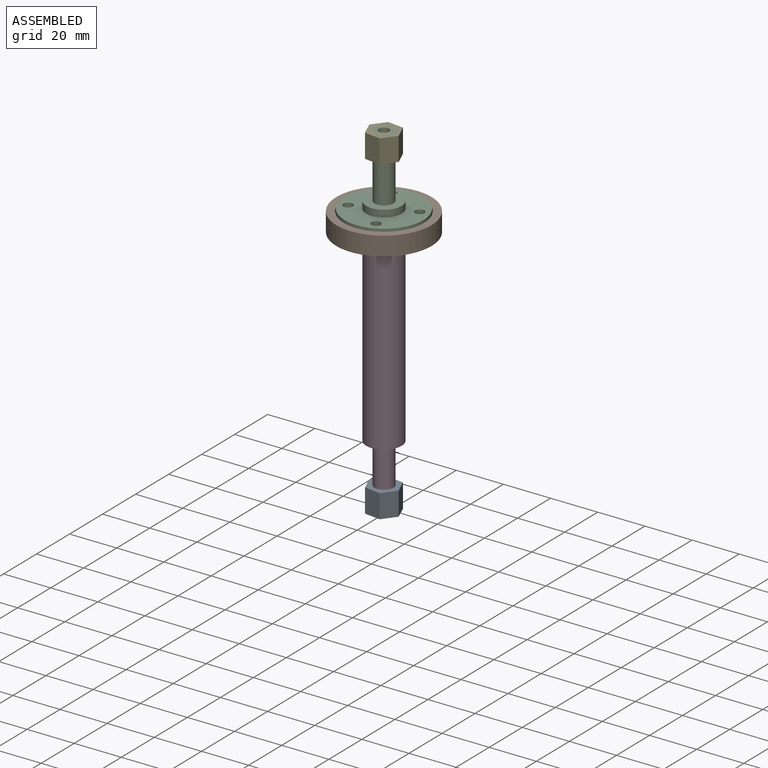
[diagram: assembled view]
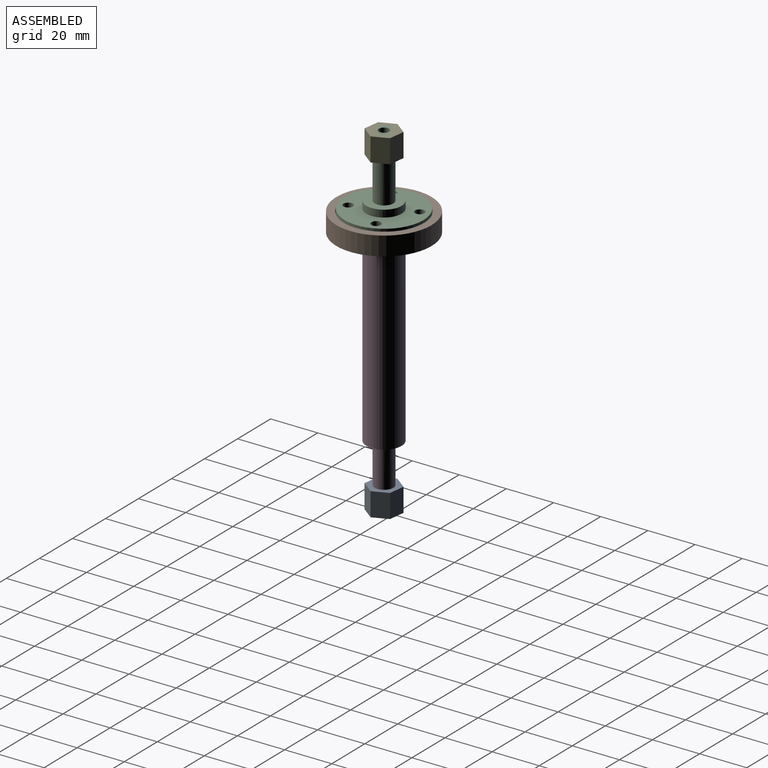
[diagram: assembled view, second angle]
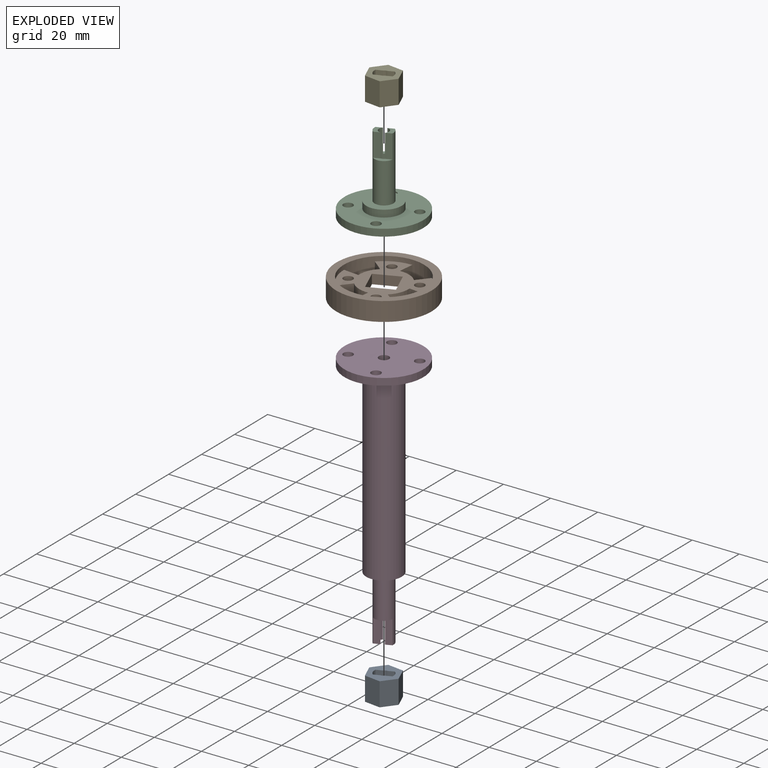
[diagram: exploded view]
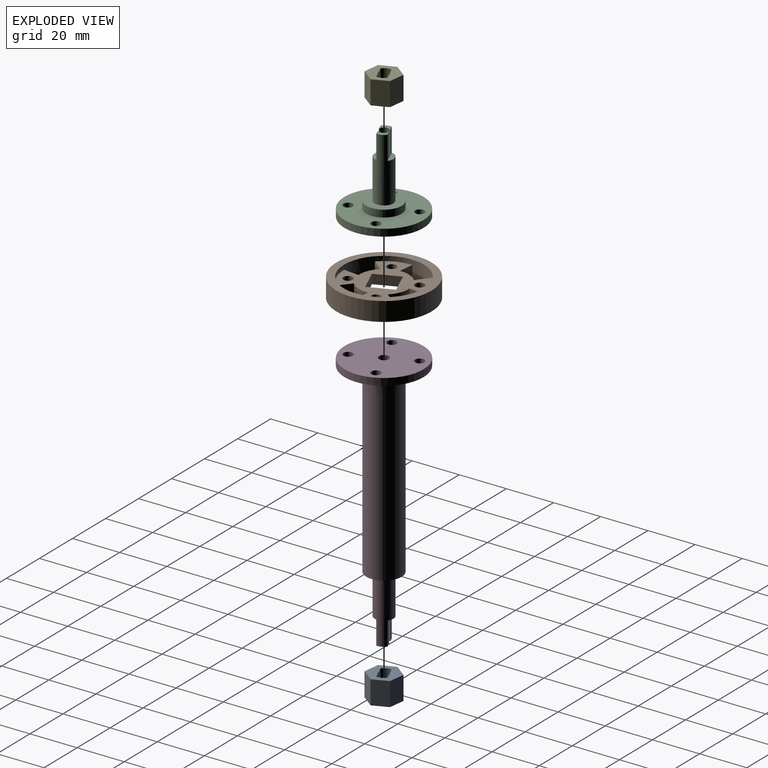
[diagram: exploded view, second angle]
ASSEMBLY  parts=5 mates=10
PART A: 16 faces, bbox 12x13.9x10 mm
  f0: plane 13.86x12mm, normal (0,0,1), area 93.8mm2, adj f2,f3,f4,f5,f6,f7,f8,f9
  f1: plane 13.86x12mm, normal (0,0,-1), area 93.8mm2, adj f2,f3,f4,f5,f6,f7,f8,f9
  f2: cylinder r=2.15mm len=10mm, axis (0,0,1), area 16.2mm2, adj f0,f1,f10,f13
  f3: plane 10x6.93mm, normal (1,0,0), area 69.3mm2, adj f0,f1,f4,f8
  f4: plane 10x6mm, normal (0.5,0.87,0), area 69.3mm2, adj f0,f1,f3,f5
  f5: plane 10x6mm, normal (-0.5,0.87,0), area 69.3mm2, adj f0,f1,f4,f6
  f6: plane 10x6.93mm, normal (-1,0,0), area 69.3mm2, adj f0,f1,f5,f7
  f7: plane 10x6mm, normal (-0.5,-0.87,0), area 69.3mm2, adj f0,f1,f6,f8
  f8: plane 10x6mm, normal (0.5,-0.87,0), area 69.3mm2, adj f0,f1,f3,f7
  f9: cylinder r=2.15mm len=10mm, axis (0,0,1), area 16.2mm2, adj f0,f1,f11,f15
  f10: plane 10x2.68mm, normal (0,-1,0), area 26.8mm2, adj f0,f1,f2,f12
  f11: plane 10x2.68mm, normal (0,1,0), area 26.8mm2, adj f0,f1,f9,f12
  f12: cylinder r=4mm len=10mm, axis (0,0,1), area 41.9mm2, adj f0,f1,f10,f11
  f13: plane 10x2.68mm, normal (0,-1,0), area 26.8mm2, adj f0,f1,f2,f14
  f14: cylinder r=4mm len=10mm, axis (0,0,1), area 41.9mm2, adj f0,f1,f13,f15
  f15: plane 10x2.68mm, normal (0,1,0), area 26.8mm2, adj f0,f1,f9,f14
PART B: 26 faces, bbox 40.4x40.4x8 mm
  f0: plane 34x34mm, normal (0,0,1), area 446.6mm2, adj f5,f6,f7,f8,f9,f10,f11,f12
  f1: plane 34x34mm, normal (0,0,-1), area 446.6mm2, adj f5,f6,f7,f8,f9,f10,f11,f12
  f2: cylinder r=20.2mm len=40.4mm, axis (0,0,-1), area 1015.4mm2, adj f3,f4
  f3: plane 40.4x40.4mm, normal (0,0,1), area 374mm2, adj f2,f5
  f4: plane 40.4x40.4mm, normal (0,0,-1), area 374mm2, adj f2,f5
  f5: cylinder r=17mm len=34mm, axis (0,0,1), area 635.5mm2, adj f0,f1,f3,f4,f14,f16,f17,f18
  f6: plane 11x4mm, normal (0,-1,0), area 44mm2, adj f0,f1,f7,f9
  f7: plane 11x4mm, normal (1,0,0), area 44mm2, adj f0,f1,f6,f8
  f8: plane 11x4mm, normal (0,1,0), area 44mm2, adj f0,f1,f7,f9
  f9: plane 11x4mm, normal (-1,0,0), area 44mm2, adj f0,f1,f6,f8
  f10: cylinder r=2mm len=4mm, axis (0,0,1), area 50.3mm2, adj f0,f1
  f11: cylinder r=2mm len=4mm, axis (0,0,1), area 50.3mm2, adj f0,f1
  f12: cylinder r=2mm len=4mm, axis (0,0,1), area 50.3mm2, adj f0,f1
  f13: cylinder r=2mm len=4mm, axis (0,0,1), area 50.3mm2, adj f0,f1
  f14: plane 5.76x4mm, normal (0.48,0.88,0), area 26.2mm2, adj f0,f1,f5,f15
  f15: cylinder r=10.5mm len=6.38mm, axis (0,0,1), area 37.2mm2, adj f0,f1,f14,f16
  f16: plane 5.74x4mm, normal (-0.88,-0.48,0), area 26.2mm2, adj f0,f1,f5,f15
  f17: plane 5.74x4mm, normal (-0.48,0.88,0), area 26.2mm2, adj f0,f1,f5,f19
  f18: plane 5.76x4mm, normal (0.88,-0.48,0), area 26.2mm2, adj f0,f1,f5,f19
  f19: cylinder r=10.5mm len=6.38mm, axis (0,0,1), area 37.2mm2, adj f0,f1,f17,f18
  f20: plane 5.74x4mm, normal (0.88,0.48,0), area 26.2mm2, adj f0,f1,f5,f22
  f21: plane 5.76x4mm, normal (-0.48,-0.88,0), area 26.2mm2, adj f0,f1,f5,f22
  f22: cylinder r=10.5mm len=6.38mm, axis (0,0,1), area 37.2mm2, adj f0,f1,f20,f21
  f23: plane 5.74x4mm, normal (0.48,-0.88,0), area 26.2mm2, adj f0,f1,f5,f25
  f24: plane 5.76x4mm, normal (-0.88,0.48,0), area 26.2mm2, adj f0,f1,f5,f25
  f25: cylinder r=10.5mm len=6.38mm, axis (0,0,1), area 37.2mm2, adj f0,f1,f23,f24
PART C: 19 faces, bbox 33.5x33.5x33 mm
  f0: plane 4x3.21mm, normal (0,0,1), area 8.2mm2, adj f11,f12,f13,f16
  f1: plane 4x3.21mm, normal (0,0,1), area 8.2mm2, adj f11,f12,f14,f17
  f2: cylinder r=16.75mm len=33.5mm, axis (0,0,-1), area 315.7mm2, adj f3,f4
  f3: plane 33.5x33.5mm, normal (0,0,1), area 654.4mm2, adj f2,f5,f6,f7,f8,f9
  f4: plane 33.5x33.5mm, normal (0,0,-1), area 816.6mm2, adj f2,f5,f6,f7,f8,f12
  f5: cylinder r=2mm len=4mm, axis (0,0,1), area 37.7mm2, adj f3,f4
  f6: cylinder r=2mm len=4mm, axis (0,0,1), area 37.7mm2, adj f3,f4
  f7: cylinder r=2mm len=4mm, axis (0,0,1), area 37.7mm2, adj f3,f4
  f8: cylinder r=2mm len=4mm, axis (0,0,1), area 37.7mm2, adj f3,f4
  f9: cylinder r=7.5mm len=15mm, axis (0,0,-1), area 141.4mm2, adj f3,f10
  f10: plane 15x15mm, normal (0,0,1), area 126.4mm2, adj f9,f11
  f11: cylinder r=4mm len=27mm, axis (0,0,-1), area 511mm2, adj f0,f1,f10,f13,f14,f15,f16,f17
  f12: cylinder r=2.15mm len=33mm, axis (0,0,1), area 413.5mm2, adj f0,f1,f4,f13,f14,f15,f16,f17
  f13: plane 10x2.68mm, normal (0,-1,0), area 26.8mm2, adj f0,f11,f12,f15
  f14: plane 10x2.68mm, normal (0,-1,0), area 26.8mm2, adj f1,f11,f12,f15
  f15: plane 6.93x2mm, normal (0,0,1), area 9.7mm2, adj f11,f12,f13,f14
  f16: plane 10x2.68mm, normal (0,1,0), area 26.8mm2, adj f0,f11,f12,f18
  f17: plane 10x2.68mm, normal (0,1,0), area 26.8mm2, adj f1,f11,f12,f18
  f18: plane 6.93x2mm, normal (0,0,1), area 9.7mm2, adj f11,f12,f16,f17
PART D: 19 faces, bbox 33.5x33.5x109 mm
  f0: plane 4x3.21mm, normal (0,0,1), area 8.2mm2, adj f10,f12,f14,f16
  f1: cylinder r=16.75mm len=33.5mm, axis (0,0,-1), area 315.7mm2, adj f2,f3
  f2: plane 33.5x33.5mm, normal (0,0,1), area 654.4mm2, adj f1,f4,f5,f6,f7,f8
  f3: plane 33.5x33.5mm, normal (0,0,-1), area 816.6mm2, adj f1,f4,f5,f6,f7,f12
  f4: cylinder r=2mm len=4mm, axis (0,0,1), area 37.7mm2, adj f2,f3
  f5: cylinder r=2mm len=4mm, axis (0,0,1), area 37.7mm2, adj f2,f3
  f6: cylinder r=2mm len=4mm, axis (0,0,1), area 37.7mm2, adj f2,f3
  f7: cylinder r=2mm len=4mm, axis (0,0,1), area 37.7mm2, adj f2,f3
  f8: cylinder r=7.5mm len=79mm, axis (0,0,-1), area 3722.8mm2, adj f2,f9
  f9: plane 15x15mm, normal (0,0,1), area 126.4mm2, adj f8,f10
  f10: cylinder r=4mm len=27mm, axis (0,0,-1), area 511mm2, adj f0,f9,f11,f13,f14,f15,f16,f17
  f11: plane 4x3.21mm, normal (0,0,1), area 8.2mm2, adj f10,f12,f13,f17
  f12: cylinder r=2.15mm len=109mm, axis (0,0,1), area 1440.1mm2, adj f0,f3,f11,f13,f14,f15,f16,f17
  f13: plane 10x2.68mm, normal (0,-1,0), area 26.8mm2, adj f10,f11,f12,f15
  f14: plane 10x2.68mm, normal (0,-1,0), area 26.8mm2, adj f0,f10,f12,f15
  f15: plane 6.93x2mm, normal (0,0,1), area 9.7mm2, adj f10,f12,f13,f14
  f16: plane 10x2.68mm, normal (0,1,0), area 26.8mm2, adj f0,f10,f12,f18
  f17: plane 10x2.68mm, normal (0,1,0), area 26.8mm2, adj f10,f11,f12,f18
  f18: plane 6.93x2mm, normal (0,0,1), area 9.7mm2, adj f10,f12,f16,f17
PART E: same geometry as A
PLACE A rot(axis=(0,0,1),22.5deg) t=(-29.76,7.34,-125.74)mm
PLACE B rot(axis=(0,0,1),22.5deg) t=(-29.76,7.34,-18.74)mm
PLACE C rot(axis=(0,0,1),22.5deg) t=(-29.76,7.34,-12.74)mm
PLACE D rot(axis=(0.98,0.2,0),180deg) t=(-29.76,7.34,-16.74)mm
PLACE E rot(axis=(0.2,-0.98,0),180deg) t=(-29.76,7.34,20.26)mm
MATE planar E.f1 <-> C.f1  axis (0,0,1) through (-30.54,1.39,20.26)mm
MATE cylindrical B.f10 <-> D.f7  axis (0,0,1) through (-24.88,-4.44,-16.74)mm
MATE planar C.f2 <-> B.f5  axis (0,0,-1) through (-29.76,7.34,-12.74)mm
MATE planar A.f0 <-> D.f18  axis (0,0,1) through (-27.33,10.51,-115.74)mm
MATE cylindrical D.f10 <-> A.f14  axis (0,0,1) through (-29.76,7.34,-98.74)mm
MATE cylindrical C.f5 <-> B.f13  axis (0,0,1) through (-41.54,2.45,-11.24)mm
MATE cylindrical B.f11 <-> C.f6  axis (0,0,1) through (-17.98,12.22,-12.74)mm
MATE cylindrical C.f11 <-> E.f12  axis (0,0,-1) through (-29.76,7.34,6.76)mm
MATE planar D.f1 <-> B.f2  axis (0,0,1) through (-29.76,7.34,-16.74)mm
MATE cylindrical D.f5 <-> B.f11  axis (0,0,-1) through (-17.98,12.22,-19.74)mm
